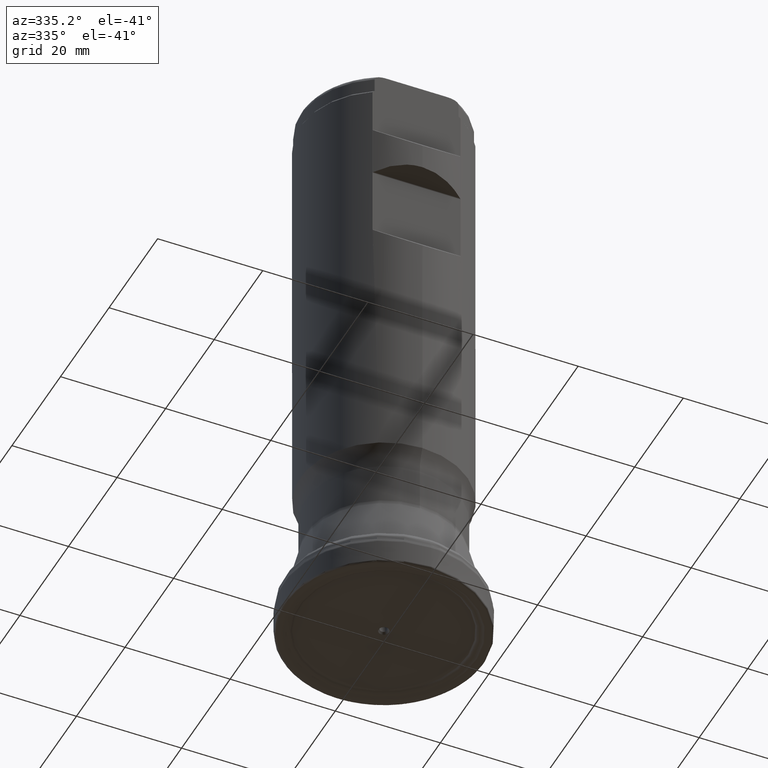
[diagram: clean part render]
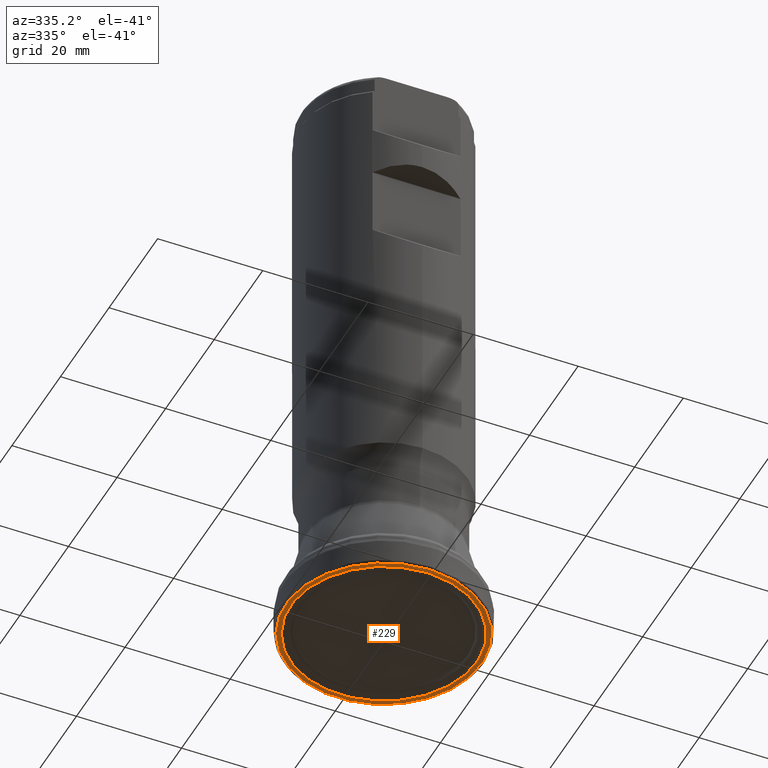
[diagram: same view with one face highlighted and labeled with its STEP entity id]
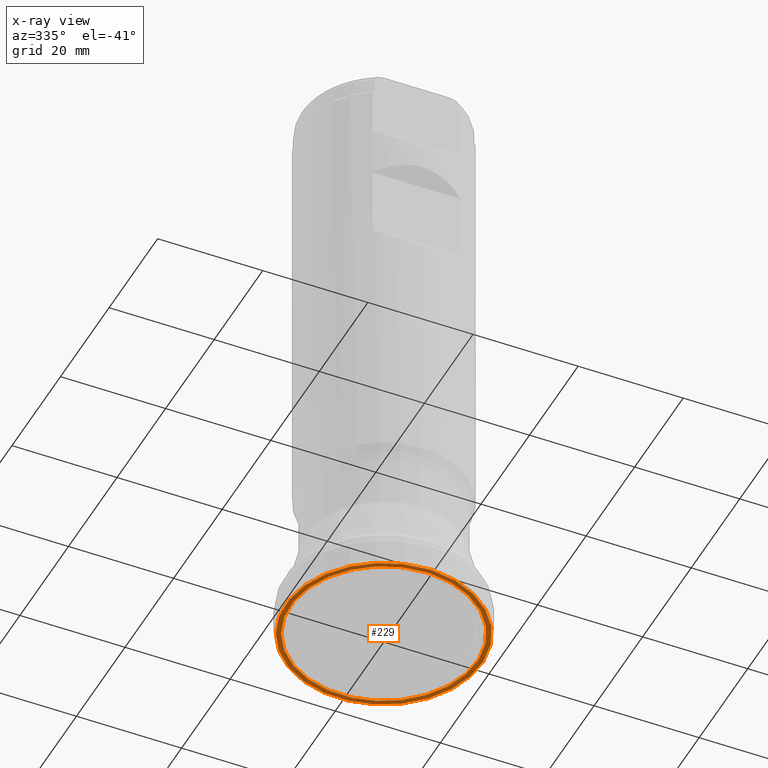
[diagram: x-ray of the same camera — body ghosted, the highlighted face saturated]
A machine part, auxiliary view. The second image highlights one B-rep face of the part: STEP entity #229.
The next image is the same camera in x-ray: the body ghosted, the highlighted face saturated — about 0% of this face is hidden behind the body in this view.
In plain terms, the highlighted face is a SurfaceOfRevolution surface.
Its self-contained STEP definition (entity closure, byte-faithful):
#114=SURFACE_OF_REVOLUTION('',#474,#134);
#134=AXIS1_PLACEMENT('',#1579,#1052);
#229=ADVANCED_FACE('',(#348,#349),#114,.F.);
#279=CIRCLE('',#875,17.7343965442564);
#280=CIRCLE('',#876,18.6589525400117);
#348=FACE_BOUND('',#438,.T.);
#349=FACE_BOUND('',#439,.T.);
#438=EDGE_LOOP('',(#615));
#439=EDGE_LOOP('',(#616));
#474=LINE('',#1578,#493);
#493=VECTOR('',#1051,0.937230343186222);
#615=ORIENTED_EDGE('',*,*,#753,.T.);
#616=ORIENTED_EDGE('',*,*,#754,.F.);
#685=VERTEX_POINT('',#1567);
#686=VERTEX_POINT('',#1577);
#753=EDGE_CURVE('',#685,#685,#279,.T.);
#754=EDGE_CURVE('',#686,#686,#280,.T.);
#875=AXIS2_PLACEMENT_3D('',#1566,#1046,#1047);
#876=AXIS2_PLACEMENT_3D('',#1576,#1049,#1050);
#1046=DIRECTION('',(0.,1.17145536458252E-15,1.));
#1047=DIRECTION('',(0.,-1.,1.17146230746908E-15));
#1049=DIRECTION('',(0.,1.17145536458252E-15,1.));
#1050=DIRECTION('',(0.,-1.,1.17145536458252E-15));
#1051=DIRECTION('',(-0.999978972180027,0.00112610806769993,0.00638647621126878));
#1052=DIRECTION('',(0.,1.17145536458252E-15,1.));
#1566=CARTESIAN_POINT('',(0.,7.01185604917375E-18,0.0059855938699573));
#1567=CARTESIAN_POINT('',(0.,-17.7343965442564,0.00598559386997807));
#1576=CARTESIAN_POINT('',(0.,5.59635367582107E-30,4.77726582251425E-15));
#1577=CARTESIAN_POINT('',(0.,-18.6589525400117,2.66353958730016E-14));
#1578=CARTESIAN_POINT('',(18.4162023742792,-2.99999999999999,8.29163191626181E-15));
#1579=CARTESIAN_POINT('',(0.,0.,0.));